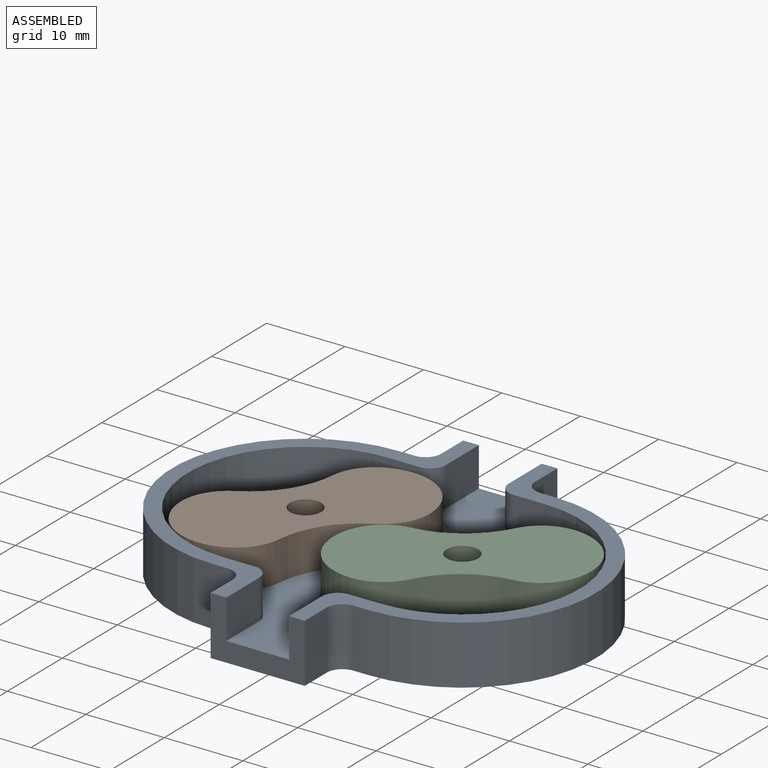
[diagram: assembled view]
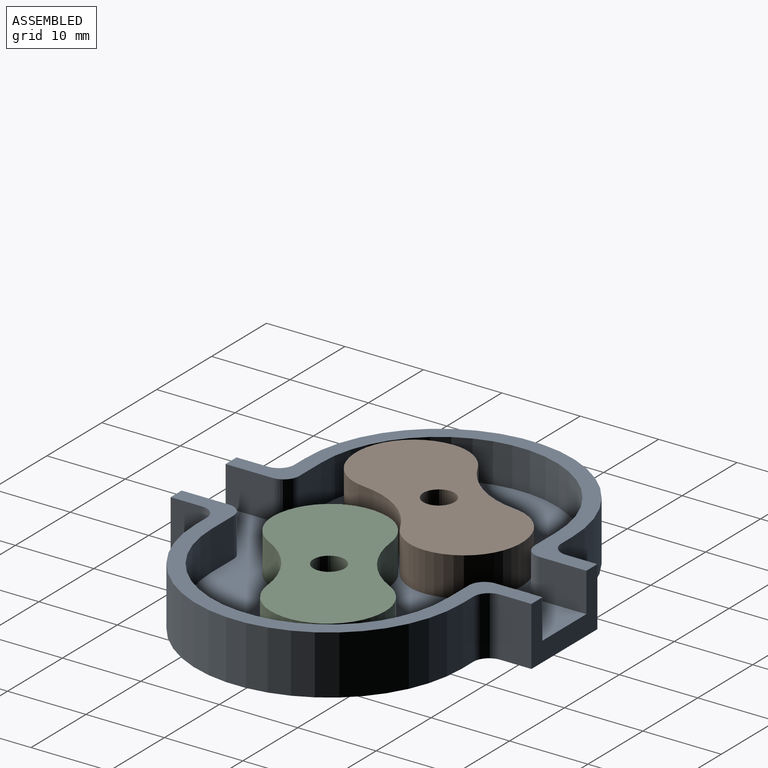
[diagram: assembled view, second angle]
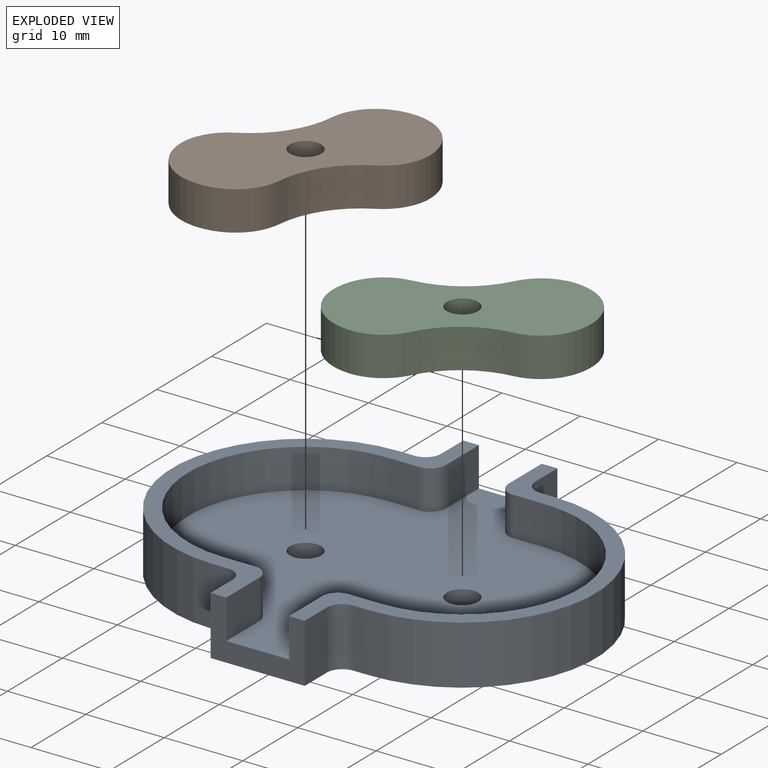
[diagram: exploded view]
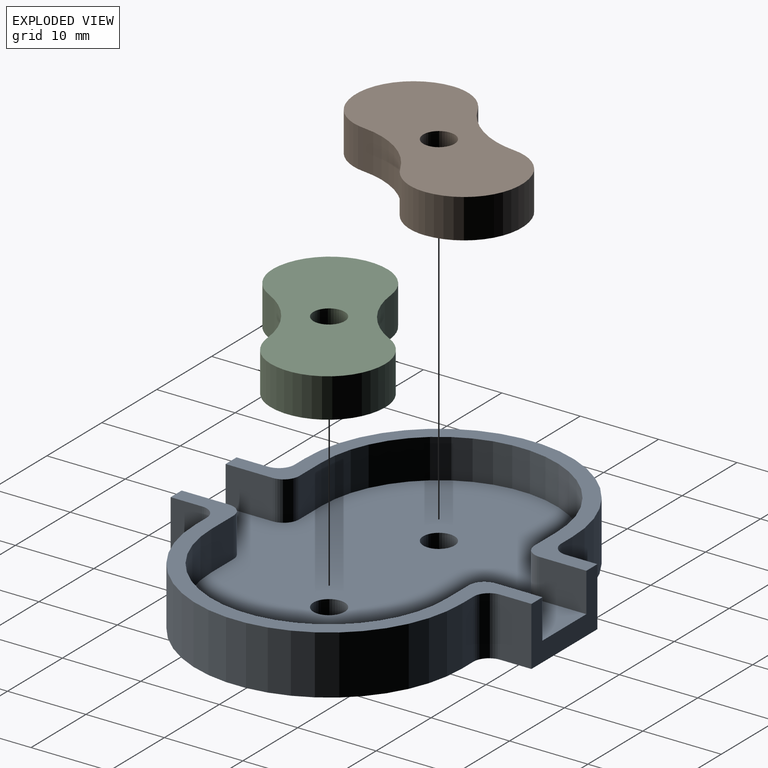
[diagram: exploded view, second angle]
ASSEMBLY  parts=3 mates=2
PART A: 36 faces, bbox 54x46x7.5 mm
  f0: plane 50x46mm, normal (0,0,1), area 1413.2mm2, adj f1,f7,f12,f14,f16,f17,f18,f19
  f1: plane 12x7.5mm, normal (0,-1,0), area 50mm2, adj f0,f2,f13,f15,f16,f21,f26,f27
  f2: plane 7.5x4mm, normal (1,0,0), area 30mm2, adj f1,f15,f27,f34
  f3: plane 7.5x2mm, normal (0,-1,0), area 15mm2, adj f4,f15,f27,f34
  f4: cylinder r=17mm len=34mm, axis (0,0,1), area 400.6mm2, adj f3,f5,f15,f27
  f5: plane 7.5x2mm, normal (0,1,0), area 15mm2, adj f4,f15,f27,f35
  f6: plane 7.5x4mm, normal (1,0,0), area 30mm2, adj f7,f15,f27,f35
  f7: plane 12x7.5mm, normal (0,1,0), area 50mm2, adj f0,f6,f8,f15,f20,f21,f22,f27
  f8: plane 7.5x4mm, normal (-1,0,0), area 30mm2, adj f7,f15,f21,f32
  f9: plane 7.5x2mm, normal (0,1,0), area 15mm2, adj f10,f15,f21,f32
  f10: cylinder r=17mm len=34mm, axis (0,0,1), area 400.6mm2, adj f9,f11,f15,f21
  f11: plane 7.5x2mm, normal (0,-1,0), area 15mm2, adj f10,f15,f21,f33
  f12: cylinder r=2mm len=4mm, axis (0,0,1), area 31.4mm2, adj f0,f15
  f13: plane 7.5x4mm, normal (-1,0,0), area 30mm2, adj f1,f15,f21,f33
  f14: cylinder r=2mm len=4mm, axis (0,0,1), area 31.4mm2, adj f0,f15
  f15: plane 54x46mm, normal (0,0,-1), area 1710.2mm2, adj f1,f2,f3,f4,f5,f6,f7,f8
  f16: plane 6x5mm, normal (1,0,0), area 30mm2, adj f0,f1,f21,f31
  f17: plane 5x4mm, normal (0,1,0), area 20mm2, adj f0,f18,f21,f31
  f18: cylinder r=15mm len=30mm, axis (0,0,-1), area 235.6mm2, adj f0,f17,f19,f21
  f19: plane 5x4mm, normal (0,-1,0), area 20mm2, adj f0,f18,f21,f30
  f20: plane 6x5mm, normal (1,0,0), area 30mm2, adj f0,f7,f21,f30
  f21: plane 46x23mm, normal (0,0,1), area 148.5mm2, adj f1,f7,f8,f9,f10,f11,f13,f16
  f22: plane 6x5mm, normal (-1,0,0), area 30mm2, adj f0,f7,f27,f28
  f23: plane 5x4mm, normal (0,-1,0), area 20mm2, adj f0,f24,f27,f28
  f24: cylinder r=15mm len=30mm, axis (0,0,-1), area 235.6mm2, adj f0,f23,f25,f27
  f25: plane 5x4mm, normal (0,1,0), area 20mm2, adj f0,f24,f27,f29
  f26: plane 6x5mm, normal (-1,0,0), area 30mm2, adj f0,f1,f27,f29
  f27: plane 46x23mm, normal (0,0,1), area 148.5mm2, adj f1,f2,f3,f4,f5,f6,f7,f22
  f28: cylinder r=2mm len=5mm, axis (0,0,-1), area 15.7mm2, adj f0,f22,f23,f27
  f29: cylinder r=2mm len=5mm, axis (0,0,1), area 15.7mm2, adj f0,f25,f26,f27
  f30: cylinder r=2mm len=5mm, axis (0,0,1), area 15.7mm2, adj f0,f19,f20,f21
  f31: cylinder r=2mm len=5mm, axis (0,0,-1), area 15.7mm2, adj f0,f16,f17,f21
  f32: cylinder r=2mm len=7.5mm, axis (0,0,-1), area 23.6mm2, adj f8,f9,f15,f21
  f33: cylinder r=2mm len=7.5mm, axis (0,0,-1), area 23.6mm2, adj f11,f13,f15,f21
  f34: cylinder r=2mm len=7.5mm, axis (0,0,-1), area 23.6mm2, adj f2,f3,f15,f27
  f35: cylinder r=2mm len=7.5mm, axis (0,0,-1), area 23.6mm2, adj f5,f6,f15,f27
PART B: 11 faces, bbox 14.2x29.6x5 mm
  f0: cylinder r=11.21mm len=10.72mm, axis (0,0,-1), area 55.9mm2, adj f5,f6,f7,f9
  f1: cylinder r=7.34mm len=12mm, axis (0,0,-1), area 70.2mm2, adj f5,f6,f7,f8
  f2: cylinder r=11.21mm len=10.72mm, axis (0,0,-1), area 55.9mm2, adj f5,f6,f8,f10
  f3: cylinder r=7.34mm len=12mm, axis (0,0,-1), area 70.2mm2, adj f5,f6,f9,f10
  f4: cylinder r=2mm len=5mm, axis (0,0,-1), area 62.8mm2, adj f5,f6
  f5: plane 29.6x14.19mm, normal (0,0,1), area 328.6mm2, adj f0,f1,f2,f3,f4,f7,f8,f9
  f6: plane 29.6x14.19mm, normal (0,0,-1), area 328.6mm2, adj f0,f1,f2,f3,f4,f7,f8,f9
  f7: cylinder r=6mm len=6.33mm, axis (0,0,1), area 33.4mm2, adj f0,f1,f5,f6
  f8: cylinder r=6mm len=6.33mm, axis (0,0,1), area 33.4mm2, adj f1,f2,f5,f6
  f9: cylinder r=6mm len=6.33mm, axis (0,0,1), area 33.4mm2, adj f0,f3,f5,f6
  f10: cylinder r=6mm len=6.33mm, axis (0,0,1), area 33.4mm2, adj f2,f3,f5,f6
PART C: same geometry as B
PLACE A at identity fixed
PLACE B rot(axis=(0,0,-1),34.2deg) t=(-59.62,33.73,0)mm
PLACE C rot(axis=(0,0,1),124.2deg) t=(43.73,-49.62,0)mm
MATE revolute B.f4 <-> A.f14  axis (0,0,-1) through (-10,0,0)mm
MATE revolute A.f12 <-> C.f4  axis (0,0,1) through (10,0,0)mm
